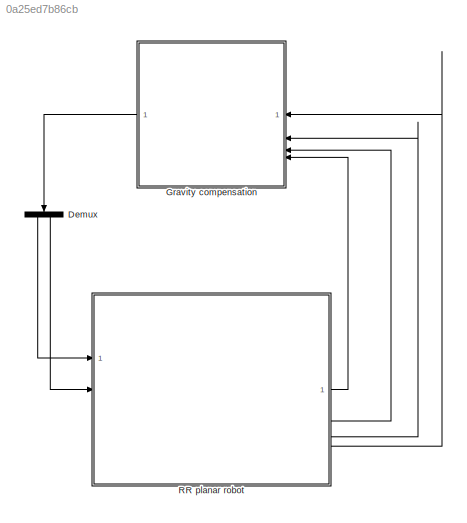
MODEL slx_0a25ed7b86cb
KIND model
CONFIG AbsTol = auto
CONFIG EnableMultiTasking = off
CONFIG FixedStep = auto
CONFIG MaxStep = auto
CONFIG MinStep = auto
CONFIG RelTol = 1e-3
CONFIG SampleTimeConstraint = Unconstrained
CONFIG SolverName = VariableStepAuto
CONFIG StartTime = 0.0
CONFIG StopTime = 10.0
BLOCK [Demux] Demux
  NameLocation = left
  Outputs = 2
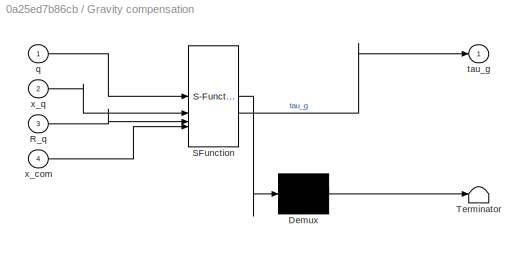
BLOCK [SubSystem] Gravity compensation
  ErrorFcn = Stateflow.Translate.translate
  PermitHierarchicalResolution = ExplicitOnly
  SFBlockType = MATLAB Function
  TreatAsAtomicUnit = on
BLOCK [Demux] Gravity compensation/ Demux 
  Outputs = 1
BLOCK [S-Function] Gravity compensation/ SFunction 
  EnableBusSupport = on
  FunctionName = sf_sfun
  PortCounts = [4 2]
  SFcnIsStateOwnerBlock = off
  SFunctionDeploymentMode = off
  Tag = Stateflow S-Function 2
BLOCK [Terminator] Gravity compensation/ Terminator 
BLOCK [Inport] Gravity compensation/R_q
  Port = 3
BLOCK [Inport] Gravity compensation/q
BLOCK [Outport] Gravity compensation/tau_g
BLOCK [Inport] Gravity compensation/x_com
  Port = 4
BLOCK [Inport] Gravity compensation/x_q
  Port = 2
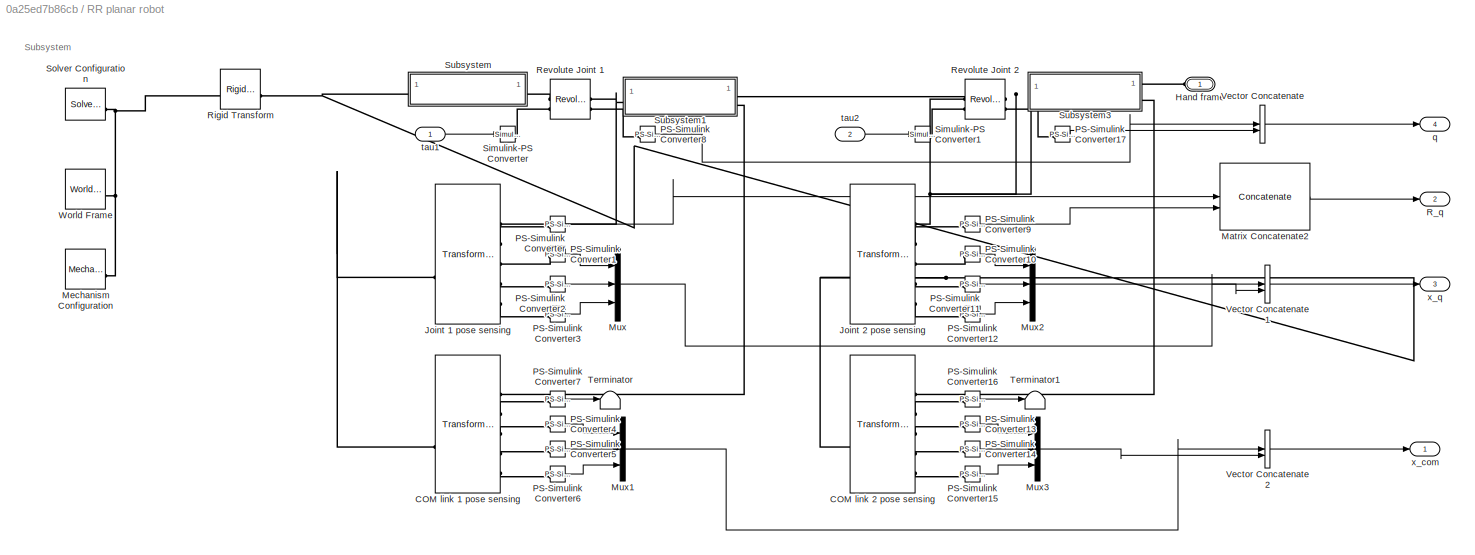
BLOCK [SubSystem] RR planar robot
BLOCK [Reference] RR planar robot/COM link 1 pose sensing  REF=sm_lib/Frames and
Transforms/Transform
Sensor
  SourceBlock = sm_lib/Frames and\nTransforms/Transform\nSensor
  SourceType = Transform\nSensor
BLOCK [Reference] RR planar robot/COM link 2 pose sensing  REF=sm_lib/Frames and
Transforms/Transform
Sensor
  SourceBlock = sm_lib/Frames and\nTransforms/Transform\nSensor
  SourceType = Transform\nSensor
BLOCK [PMIOPort] RR planar robot/Hand frame
  Side = Left
BLOCK [Reference] RR planar robot/Joint 1 pose sensing  REF=sm_lib/Frames and
Transforms/Transform
Sensor
  SourceBlock = sm_lib/Frames and\nTransforms/Transform\nSensor
  SourceType = Transform\nSensor
BLOCK [Reference] RR planar robot/Joint 2 pose sensing  REF=sm_lib/Frames and
Transforms/Transform
Sensor
  SourceBlock = sm_lib/Frames and\nTransforms/Transform\nSensor
  SourceType = Transform\nSensor
BLOCK [Concatenate] RR planar robot/Matrix Concatenate2
  ConcatenateDimension = 3
  Mode = Multidimensional array
BLOCK [Reference] RR planar robot/Mechanism Configuration  REF=sm_lib/Utilities/Mechanism
Configuration
  SourceBlock = sm_lib/Utilities/Mechanism\nConfiguration
  SourceType = Mechanism\nConfiguration
BLOCK [Mux] RR planar robot/Mux
  DisplayOption = bar
  Inputs = 3
BLOCK [Mux] RR planar robot/Mux1
  DisplayOption = bar
  Inputs = 3
BLOCK [Mux] RR planar robot/Mux2
  DisplayOption = bar
  Inputs = 3
BLOCK [Mux] RR planar robot/Mux3
  DisplayOption = bar
  Inputs = 3
BLOCK [Reference] RR planar robot/PS-Simulink Converter  REF=nesl_utility/PS-Simulink
Converter
  SourceBlock = nesl_utility/PS-Simulink\nConverter
  SourceType = PS-Simulink\nConverter
BLOCK [Reference] RR planar robot/PS-Simulink Converter1  REF=nesl_utility/PS-Simulink
Converter
  SourceBlock = nesl_utility/PS-Simulink\nConverter
  SourceType = PS-Simulink\nConverter
BLOCK [Reference] RR planar robot/PS-Simulink Converter10  REF=nesl_utility/PS-Simulink
Converter
  SourceBlock = nesl_utility/PS-Simulink\nConverter
  SourceType = PS-Simulink\nConverter
BLOCK [Reference] RR planar robot/PS-Simulink Converter11  REF=nesl_utility/PS-Simulink
Converter
  SourceBlock = nesl_utility/PS-Simulink\nConverter
  SourceType = PS-Simulink\nConverter
BLOCK [Reference] RR planar robot/PS-Simulink Converter12  REF=nesl_utility/PS-Simulink
Converter
  SourceBlock = nesl_utility/PS-Simulink\nConverter
  SourceType = PS-Simulink\nConverter
BLOCK [Reference] RR planar robot/PS-Simulink Converter13  REF=nesl_utility/PS-Simulink
Converter
  SourceBlock = nesl_utility/PS-Simulink\nConverter
  SourceType = PS-Simulink\nConverter
BLOCK [Reference] RR planar robot/PS-Simulink Converter14  REF=nesl_utility/PS-Simulink
Converter
  SourceBlock = nesl_utility/PS-Simulink\nConverter
  SourceType = PS-Simulink\nConverter
BLOCK [Reference] RR planar robot/PS-Simulink Converter15  REF=nesl_utility/PS-Simulink
Converter
  SourceBlock = nesl_utility/PS-Simulink\nConverter
  SourceType = PS-Simulink\nConverter
BLOCK [Reference] RR planar robot/PS-Simulink Converter16  REF=nesl_utility/PS-Simulink
Converter
  SourceBlock = nesl_utility/PS-Simulink\nConverter
  SourceType = PS-Simulink\nConverter
BLOCK [Reference] RR planar robot/PS-Simulink Converter17  REF=nesl_utility/PS-Simulink
Converter
  SourceBlock = nesl_utility/PS-Simulink\nConverter
  SourceType = PS-Simulink\nConverter
BLOCK [Reference] RR planar robot/PS-Simulink Converter2  REF=nesl_utility/PS-Simulink
Converter
  SourceBlock = nesl_utility/PS-Simulink\nConverter
  SourceType = PS-Simulink\nConverter
BLOCK [Reference] RR planar robot/PS-Simulink Converter3  REF=nesl_utility/PS-Simulink
Converter
  SourceBlock = nesl_utility/PS-Simulink\nConverter
  SourceType = PS-Simulink\nConverter
BLOCK [Reference] RR planar robot/PS-Simulink Converter4  REF=nesl_utility/PS-Simulink
Converter
  SourceBlock = nesl_utility/PS-Simulink\nConverter
  SourceType = PS-Simulink\nConverter
BLOCK [Reference] RR planar robot/PS-Simulink Converter5  REF=nesl_utility/PS-Simulink
Converter
  SourceBlock = nesl_utility/PS-Simulink\nConverter
  SourceType = PS-Simulink\nConverter
BLOCK [Reference] RR planar robot/PS-Simulink Converter6  REF=nesl_utility/PS-Simulink
Converter
  SourceBlock = nesl_utility/PS-Simulink\nConverter
  SourceType = PS-Simulink\nConverter
BLOCK [Reference] RR planar robot/PS-Simulink Converter7  REF=nesl_utility/PS-Simulink
Converter
  SourceBlock = nesl_utility/PS-Simulink\nConverter
  SourceType = PS-Simulink\nConverter
BLOCK [Reference] RR planar robot/PS-Simulink Converter8  REF=nesl_utility/PS-Simulink
Converter
  SourceBlock = nesl_utility/PS-Simulink\nConverter
  SourceType = PS-Simulink\nConverter
BLOCK [Reference] RR planar robot/PS-Simulink Converter9  REF=nesl_utility/PS-Simulink
Converter
  SourceBlock = nesl_utility/PS-Simulink\nConverter
  SourceType = PS-Simulink\nConverter
BLOCK [Outport] RR planar robot/R_q
  Port = 2
BLOCK [Reference] RR planar robot/Revolute Joint 1  REF=sm_lib/Joints/Revolute Joint
  SourceBlock = sm_lib/Joints/Revolute Joint
  SourceType = Revolute Joint
BLOCK [Reference] RR planar robot/Revolute Joint 2  REF=sm_lib/Joints/Revolute Joint
  SourceBlock = sm_lib/Joints/Revolute Joint
  SourceType = Revolute Joint
BLOCK [Reference] RR planar robot/Rigid Transform  REF=sm_lib/Frames and
Transforms/Rigid
Transform
  SourceBlock = sm_lib/Frames and\nTransforms/Rigid\nTransform
  SourceType = Rigid\nTransform
BLOCK [Reference] RR planar robot/Simulink-PS Converter  REF=nesl_utility/Simulink-PS
Converter
  SourceBlock = nesl_utility/Simulink-PS\nConverter
  SourceType = Simulink-PS\nConverter
BLOCK [Reference] RR planar robot/Simulink-PS Converter1  REF=nesl_utility/Simulink-PS
Converter
  SourceBlock = nesl_utility/Simulink-PS\nConverter
  SourceType = Simulink-PS\nConverter
BLOCK [Reference] RR planar robot/Solver Configuration  REF=nesl_utility/Solver
Configuration
  SourceBlock = nesl_utility/Solver\nConfiguration
  SourceType = Solver\nConfiguration
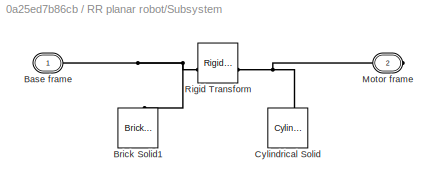
BLOCK [SubSystem] RR planar robot/Subsystem
BLOCK [PMIOPort] RR planar robot/Subsystem/Base frame
  Side = Left
BLOCK [Reference] RR planar robot/Subsystem/Brick Solid1  REF=sm_lib/Body Elements/Brick Solid
  NameLocation = right
  SourceBlock = sm_lib/Body Elements/Brick Solid
  SourceType = Brick Solid
BLOCK [Reference] RR planar robot/Subsystem/Cylindrical Solid  REF=sm_lib/Body Elements/Cylindrical Solid
  NameLocation = right
  SourceBlock = sm_lib/Body Elements/Cylindrical Solid
  SourceType = Cylindrical Solid
BLOCK [PMIOPort] RR planar robot/Subsystem/Motor frame
  Port = 2
  Side = Right
BLOCK [Reference] RR planar robot/Subsystem/Rigid Transform  REF=sm_lib/Frames and
Transforms/Rigid
Transform
  SourceBlock = sm_lib/Frames and\nTransforms/Rigid\nTransform
  SourceType = Rigid\nTransform
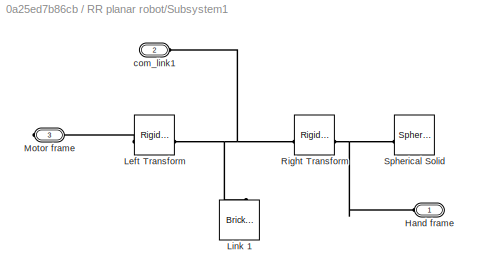
BLOCK [SubSystem] RR planar robot/Subsystem1
  NameLocation = top
BLOCK [PMIOPort] RR planar robot/Subsystem1/Hand frame
  Side = Left
BLOCK [Reference] RR planar robot/Subsystem1/Left Transform  REF=sm_lib/Frames and
Transforms/Rigid
Transform
  SourceBlock = sm_lib/Frames and\nTransforms/Rigid\nTransform
  SourceType = Rigid\nTransform
BLOCK [Reference] RR planar robot/Subsystem1/Link 1  REF=sm_lib/Body Elements/Brick Solid
  NameLocation = right
  SourceBlock = sm_lib/Body Elements/Brick Solid
  SourceType = Brick Solid
BLOCK [PMIOPort] RR planar robot/Subsystem1/Motor frame
  Port = 3
  Side = Right
BLOCK [Reference] RR planar robot/Subsystem1/Right Transform  REF=sm_lib/Frames and
Transforms/Rigid
Transform
  SourceBlock = sm_lib/Frames and\nTransforms/Rigid\nTransform
  SourceType = Rigid\nTransform
BLOCK [Reference] RR planar robot/Subsystem1/Spherical Solid  REF=sm_lib/Body Elements/Spherical Solid
  SourceBlock = sm_lib/Body Elements/Spherical Solid
  SourceType = Spherical Solid
BLOCK [PMIOPort] RR planar robot/Subsystem1/com_link1
  Port = 2
  Side = Left
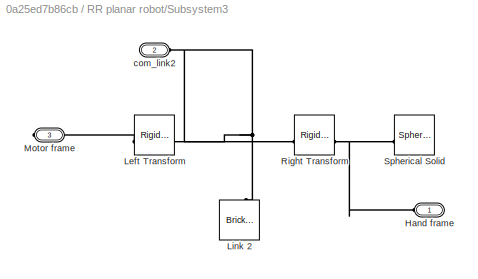
BLOCK [SubSystem] RR planar robot/Subsystem3
  NameLocation = top
BLOCK [PMIOPort] RR planar robot/Subsystem3/Hand frame
  Side = Left
BLOCK [Reference] RR planar robot/Subsystem3/Left Transform  REF=sm_lib/Frames and
Transforms/Rigid
Transform
  SourceBlock = sm_lib/Frames and\nTransforms/Rigid\nTransform
  SourceType = Rigid\nTransform
BLOCK [Reference] RR planar robot/Subsystem3/Link 2  REF=sm_lib/Body Elements/Brick Solid
  NameLocation = right
  SourceBlock = sm_lib/Body Elements/Brick Solid
  SourceType = Brick Solid
BLOCK [PMIOPort] RR planar robot/Subsystem3/Motor frame
  Port = 3
  Side = Right
BLOCK [Reference] RR planar robot/Subsystem3/Right Transform  REF=sm_lib/Frames and
Transforms/Rigid
Transform
  SourceBlock = sm_lib/Frames and\nTransforms/Rigid\nTransform
  SourceType = Rigid\nTransform
BLOCK [Reference] RR planar robot/Subsystem3/Spherical Solid  REF=sm_lib/Body Elements/Spherical Solid
  SourceBlock = sm_lib/Body Elements/Spherical Solid
  SourceType = Spherical Solid
BLOCK [PMIOPort] RR planar robot/Subsystem3/com_link2
  Port = 2
  Side = Left
BLOCK [Terminator] RR planar robot/Terminator
BLOCK [Terminator] RR planar robot/Terminator1
BLOCK [Concatenate] RR planar robot/Vector Concatenate
  ConcatenateDimension = 2
  Mode = Multidimensional array
BLOCK [Concatenate] RR planar robot/Vector Concatenate1
  ConcatenateDimension = 2
  Mode = Multidimensional array
BLOCK [Concatenate] RR planar robot/Vector Concatenate2
  ConcatenateDimension = 2
  Mode = Multidimensional array
BLOCK [Reference] RR planar robot/World Frame  REF=sm_lib/Frames and
Transforms/World Frame
  SourceBlock = sm_lib/Frames and\nTransforms/World Frame
  SourceType = World Frame
BLOCK [Outport] RR planar robot/q
  Port = 4
BLOCK [Inport] RR planar robot/tau1
BLOCK [Inport] RR planar robot/tau2
  Port = 2
BLOCK [Outport] RR planar robot/x_com
BLOCK [Outport] RR planar robot/x_q
  Port = 3
ANNOTATION RR planar robot: Subsystem
LINE Demux:1 -> RR planar robot:1
LINE Demux:2 -> RR planar robot:2
LINE Gravity compensation:1 -> Demux:1
LINE RR planar robot/Matrix Concatenate2:1 -> RR planar robot/R_q:1
LINE RR planar robot/Mux1:1 -> RR planar robot/Vector Concatenate2:1
LINE RR planar robot/Mux2:1 -> RR planar robot/Vector Concatenate1:2
LINE RR planar robot/Mux3:1 -> RR planar robot/Vector Concatenate2:2
LINE RR planar robot/Mux:1 -> RR planar robot/Vector Concatenate1:1
LINE RR planar robot/PS-Simulink Converter10:1 -> RR planar robot/Mux2:1
LINE RR planar robot/PS-Simulink Converter11:1 -> RR planar robot/Mux2:2
LINE RR planar robot/PS-Simulink Converter12:1 -> RR planar robot/Mux2:3
LINE RR planar robot/PS-Simulink Converter13:1 -> RR planar robot/Mux3:1
LINE RR planar robot/PS-Simulink Converter14:1 -> RR planar robot/Mux3:2
LINE RR planar robot/PS-Simulink Converter15:1 -> RR planar robot/Mux3:3
LINE RR planar robot/PS-Simulink Converter16:1 -> RR planar robot/Terminator1:1
LINE RR planar robot/PS-Simulink Converter17:1 -> RR planar robot/Vector Concatenate:2
LINE RR planar robot/PS-Simulink Converter1:1 -> RR planar robot/Mux:1
LINE RR planar robot/PS-Simulink Converter2:1 -> RR planar robot/Mux:2
LINE RR planar robot/PS-Simulink Converter3:1 -> RR planar robot/Mux:3
LINE RR planar robot/PS-Simulink Converter4:1 -> RR planar robot/Mux1:1
LINE RR planar robot/PS-Simulink Converter5:1 -> RR planar robot/Mux1:2
LINE RR planar robot/PS-Simulink Converter6:1 -> RR planar robot/Mux1:3
LINE RR planar robot/PS-Simulink Converter7:1 -> RR planar robot/Terminator:1
LINE RR planar robot/PS-Simulink Converter8:1 -> RR planar robot/Vector Concatenate:1
LINE RR planar robot/PS-Simulink Converter9:1 -> RR planar robot/Matrix Concatenate2:2
LINE RR planar robot/PS-Simulink Converter:1 -> RR planar robot/Matrix Concatenate2:1
LINE RR planar robot/Vector Concatenate1:1 -> RR planar robot/x_q:1
LINE RR planar robot/Vector Concatenate2:1 -> RR planar robot/x_com:1
LINE RR planar robot/Vector Concatenate:1 -> RR planar robot/q:1
LINE RR planar robot/tau1:1 -> RR planar robot/Simulink-PS Converter:1
LINE RR planar robot/tau2:1 -> RR planar robot/Simulink-PS Converter1:1
LINE RR planar robot:1 -> Gravity compensation:4
LINE RR planar robot:2 -> Gravity compensation:3
LINE RR planar robot:3 -> Gravity compensation:2
LINE RR planar robot:4 -> Gravity compensation:1
PNET net1: RR planar robot/COM link 1 pose sensing:LConn1 -- RR planar robot/COM link 2 pose sensing:LConn1 -- RR planar robot/Joint 1 pose sensing:LConn1 -- RR planar robot/Joint 2 pose sensing:LConn1 -- RR planar robot/Rigid Transform:RConn1 -- RR planar robot/Subsystem:LConn1
PLINE RR planar robot/COM link 1 pose sensing:RConn1 -- RR planar robot/Subsystem1:LConn2
PLINE RR planar robot/COM link 1 pose sensing:RConn2 -- RR planar robot/PS-Simulink Converter7:LConn1
PLINE RR planar robot/COM link 1 pose sensing:RConn3 -- RR planar robot/PS-Simulink Converter4:LConn1
PLINE RR planar robot/COM link 1 pose sensing:RConn4 -- RR planar robot/PS-Simulink Converter5:LConn1
PLINE RR planar robot/COM link 1 pose sensing:RConn5 -- RR planar robot/PS-Simulink Converter6:LConn1
PLINE RR planar robot/COM link 2 pose sensing:RConn1 -- RR planar robot/Subsystem3:LConn2
PLINE RR planar robot/COM link 2 pose sensing:RConn2 -- RR planar robot/PS-Simulink Converter16:LConn1
PLINE RR planar robot/COM link 2 pose sensing:RConn3 -- RR planar robot/PS-Simulink Converter13:LConn1
PLINE RR planar robot/COM link 2 pose sensing:RConn4 -- RR planar robot/PS-Simulink Converter14:LConn1
PLINE RR planar robot/COM link 2 pose sensing:RConn5 -- RR planar robot/PS-Simulink Converter15:LConn1
PLINE RR planar robot/Hand frame:RConn1 -- RR planar robot/Subsystem3:LConn1
PNET net2: RR planar robot/Joint 1 pose sensing:RConn1 -- RR planar robot/Revolute Joint 1:RConn1 -- RR planar robot/Subsystem1:RConn1
PLINE RR planar robot/Joint 1 pose sensing:RConn2 -- RR planar robot/PS-Simulink Converter:LConn1
PLINE RR planar robot/Joint 1 pose sensing:RConn3 -- RR planar robot/PS-Simulink Converter1:LConn1
PLINE RR planar robot/Joint 1 pose sensing:RConn4 -- RR planar robot/PS-Simulink Converter2:LConn1
PLINE RR planar robot/Joint 1 pose sensing:RConn5 -- RR planar robot/PS-Simulink Converter3:LConn1
PNET net3: RR planar robot/Joint 2 pose sensing:RConn1 -- RR planar robot/Revolute Joint 2:RConn1 -- RR planar robot/Subsystem3:RConn1
PLINE RR planar robot/Joint 2 pose sensing:RConn2 -- RR planar robot/PS-Simulink Converter9:LConn1
PLINE RR planar robot/Joint 2 pose sensing:RConn3 -- RR planar robot/PS-Simulink Converter10:LConn1
PLINE RR planar robot/Joint 2 pose sensing:RConn4 -- RR planar robot/PS-Simulink Converter11:LConn1
PLINE RR planar robot/Joint 2 pose sensing:RConn5 -- RR planar robot/PS-Simulink Converter12:LConn1
PNET net4: RR planar robot/Mechanism Configuration:RConn1 -- RR planar robot/Rigid Transform:LConn1 -- RR planar robot/Solver Configuration:RConn1 -- RR planar robot/World Frame:RConn1
PLINE RR planar robot/PS-Simulink Converter17:LConn1 -- RR planar robot/Revolute Joint 2:RConn2
PLINE RR planar robot/PS-Simulink Converter8:LConn1 -- RR planar robot/Revolute Joint 1:RConn2
PLINE RR planar robot/Revolute Joint 1:LConn1 -- RR planar robot/Subsystem:RConn1
PLINE RR planar robot/Revolute Joint 1:LConn2 -- RR planar robot/Simulink-PS Converter:RConn1
PLINE RR planar robot/Revolute Joint 2:LConn1 -- RR planar robot/Subsystem1:LConn1
PLINE RR planar robot/Revolute Joint 2:LConn2 -- RR planar robot/Simulink-PS Converter1:RConn1
PNET net5: RR planar robot/Subsystem/Base frame:RConn1 -- RR planar robot/Subsystem/Brick Solid1:RConn1 -- RR planar robot/Subsystem/Rigid Transform:LConn1
PNET net6: RR planar robot/Subsystem/Cylindrical Solid:RConn1 -- RR planar robot/Subsystem/Motor frame:RConn1 -- RR planar robot/Subsystem/Rigid Transform:RConn1
PNET net7: RR planar robot/Subsystem1/Hand frame:RConn1 -- RR planar robot/Subsystem1/Right Transform:RConn1 -- RR planar robot/Subsystem1/Spherical Solid:RConn1
PLINE RR planar robot/Subsystem1/Left Transform:LConn1 -- RR planar robot/Subsystem1/Motor frame:RConn1
PNET net8: RR planar robot/Subsystem1/Left Transform:RConn1 -- RR planar robot/Subsystem1/Link 1:RConn1 -- RR planar robot/Subsystem1/Right Transform:LConn1 -- RR planar robot/Subsystem1/com_link1:RConn1
PNET net9: RR planar robot/Subsystem3/Hand frame:RConn1 -- RR planar robot/Subsystem3/Right Transform:RConn1 -- RR planar robot/Subsystem3/Spherical Solid:RConn1
PLINE RR planar robot/Subsystem3/Left Transform:LConn1 -- RR planar robot/Subsystem3/Motor frame:RConn1
PNET net10: RR planar robot/Subsystem3/Left Transform:RConn1 -- RR planar robot/Subsystem3/Link 2:RConn1 -- RR planar robot/Subsystem3/Right Transform:LConn1 -- RR planar robot/Subsystem3/com_link2:RConn1
note: PNET lines group multi-terminal physical nets as a canonical sorted terminal list (undirected conserving connections); 2-terminal nets keep the pairwise PLINE form
CHART Gravity compensation states=1 transitions=1
  STATE_LABEL 'eML_blk_kernel()'
  STATE_LABEL 'SCRIPT:\nfunction tau_g  = fcn(q, x_q, R_q, x_com)\n\n    jointType = [0,0];\n    m1 = 4; % mass of link 1\n    m2 = 0.7; % mass of link 2\n    m = [m1+m2,m2];\n    x_com(:,1) = (x_com(:,1)*m1 + x_com(:,2)*m2)/m(1) - x_q(:,1);\n    x_com(:,2) = x_com(:,2) - x_q(:,2);\n    \n    g = [0; -9.80665; 0]; % gravity\n\n    % Initialize variables\n    n_bodies = size(x_q, 2);\n    tau_g = zeros(1,n_bodies);\n    ki = ze...<+1108ch>'
CHART  states=0 transitions=0
